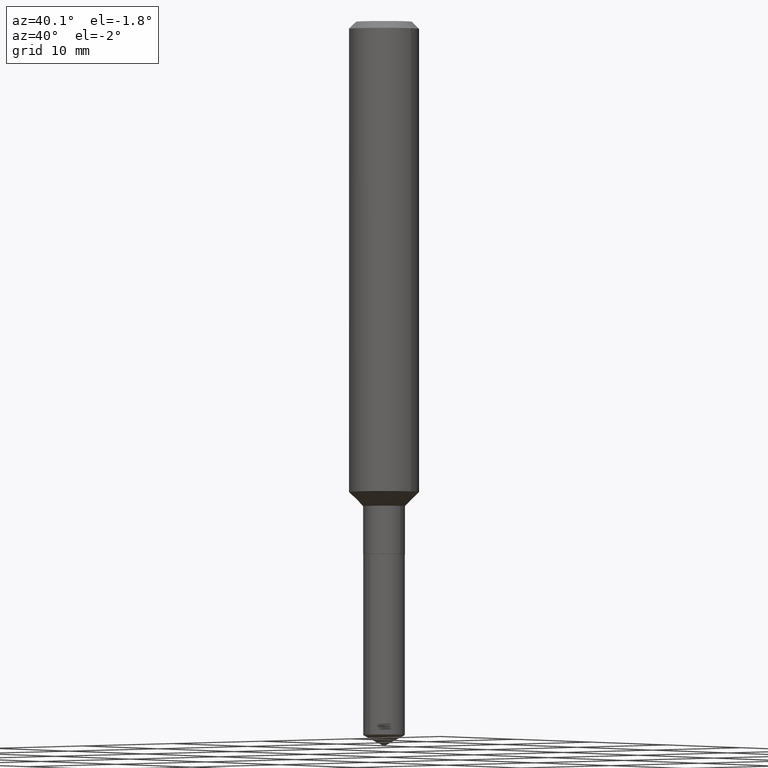
[diagram: clean part render]
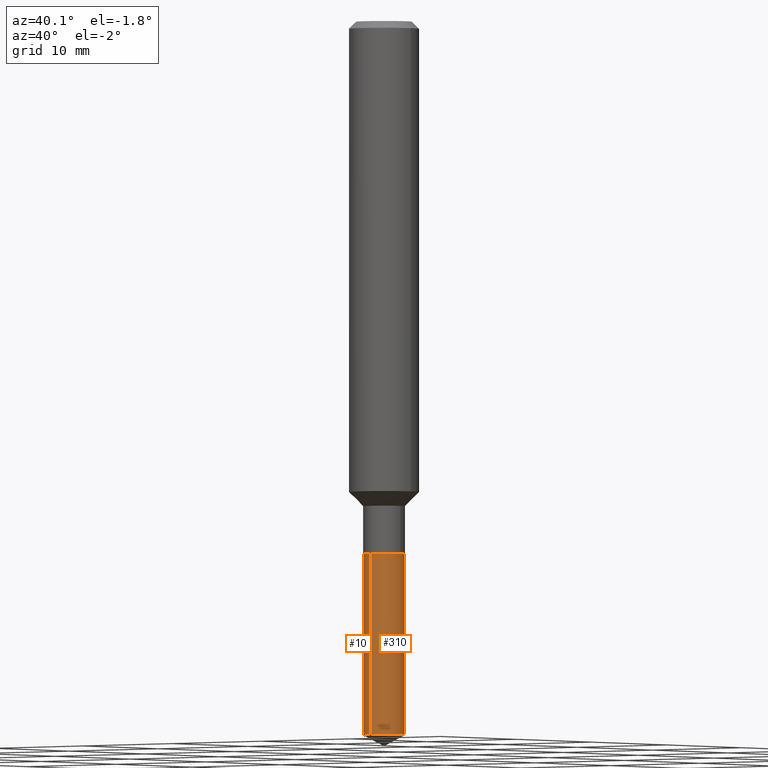
[diagram: same view with one multi-face feature highlighted, each face labeled with its STEP entity id]
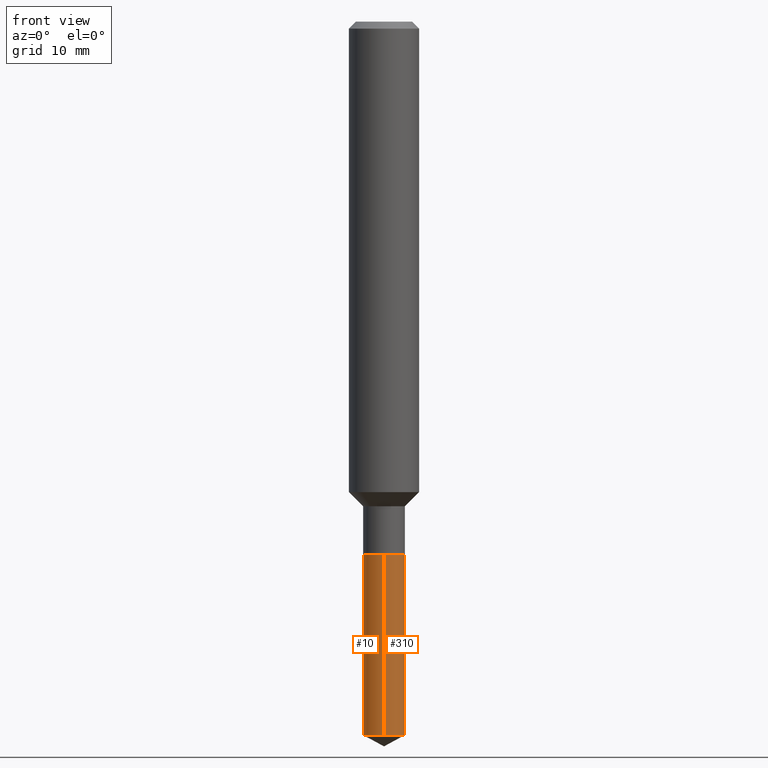
[diagram: same view with one multi-face feature highlighted, each face labeled with its STEP entity id]
A machine part, auxiliary view. The highlighted faces form ONE feature: a constant-radius fillet chain: 2 tangent blend faces with common blend radius 1.7856 mm. The faces share edges in the B-rep.
A second angle (front view) of the same feature is appended — it is thin or edge-on in the first view.
Their STEP definitions:
[1] entity #10 (Cylinder):
#4 = EDGE_CURVE ( 'NONE', #72, #319, #293, .T. ) ;
#10 = ADVANCED_FACE ( 'NONE', ( #139 ), #255, .T. ) ;
#20 = DIRECTION ( 'NONE',  ( -2.445544220405332064E-29, 3.491373341387514787E-15, 1.000000000000000000 ) ) ;
#24 = VECTOR ( 'NONE', #410, 39.37007874015748143 ) ;
#30 = DIRECTION ( 'NONE',  ( -6.982962677686265133E-15, -1.000000000000000000, 3.885985766236505386E-15 ) ) ;
#31 = ORIENTED_EDGE ( 'NONE', *, *, #323, .F. ) ;
#38 = EDGE_CURVE ( 'NONE', #388, #306, #110, .T. ) ;
#62 = AXIS2_PLACEMENT_3D ( 'NONE', #123, #20, #271 ) ;
#72 = VERTEX_POINT ( 'NONE', #457 ) ;
#98 = ORIENTED_EDGE ( 'NONE', *, *, #38, .F. ) ;
#110 = LINE ( 'NONE', #256, #24 ) ;
#114 = VECTOR ( 'NONE', #175, 39.37007874015748143 ) ;
#122 = CIRCLE ( 'NONE', #453, 0.07030000000000000138 ) ;
#123 = CARTESIAN_POINT ( 'NONE',  ( 4.387415585176754180E-29, -6.264066670018488385E-15, -1.794100000000000028 ) ) ;
#139 = FACE_OUTER_BOUND ( 'NONE', #181, .T. ) ;
#163 = ORIENTED_EDGE ( 'NONE', *, *, #405, .T. ) ;
#175 = DIRECTION ( 'NONE',  ( -2.445544220405332064E-29, 3.491373341387514787E-15, 1.000000000000000000 ) ) ;
#181 = EDGE_LOOP ( 'NONE', ( #98, #163, #423, #31 ) ) ;
#210 = CARTESIAN_POINT ( 'NONE',  ( 5.877781166329232156E-29, -8.391782298932709493E-15, -2.403520826954198331 ) ) ;
#217 = CARTESIAN_POINT ( 'NONE',  ( 4.387415585176754180E-29, -6.264066670018488385E-15, -1.794100000000000028 ) ) ;
#238 = CARTESIAN_POINT ( 'NONE',  ( 4.995115432394092106E-16, 0.07029999999999372862, -1.794100000000000472 ) ) ;
#244 = CARTESIAN_POINT ( 'NONE',  ( 4.995115432394092106E-16, 0.07029999999999161919, -2.403520826954198775 ) ) ;
#250 = DIRECTION ( 'NONE',  ( -2.445544220405332064E-29, 3.491373341387514787E-15, 1.000000000000000000 ) ) ;
#255 = CYLINDRICAL_SURFACE ( 'NONE', #489, 0.07030000000000000138 ) ;
#256 = CARTESIAN_POINT ( 'NONE',  ( 4.995115432393942222E-16, 0.07029999999999372862, -1.794100000000000472 ) ) ;
#271 = DIRECTION ( 'NONE',  ( -6.982962677686265133E-15, -1.000000000000000000, 3.885985766236505386E-15 ) ) ;
#292 = CARTESIAN_POINT ( 'NONE',  ( -4.909022762413006725E-16, -0.07030000000000626026, -1.794099999999999806 ) ) ;
#293 = LINE ( 'NONE', #292, #114 ) ;
#306 = VERTEX_POINT ( 'NONE', #238 ) ;
#319 = VERTEX_POINT ( 'NONE', #459 ) ;
#323 = EDGE_CURVE ( 'NONE', #306, #319, #386, .T. ) ;
#386 = CIRCLE ( 'NONE', #62, 0.07030000000000000138 ) ;
#388 = VERTEX_POINT ( 'NONE', #244 ) ;
#405 = EDGE_CURVE ( 'NONE', #388, #72, #122, .T. ) ;
#410 = DIRECTION ( 'NONE',  ( -2.445544220405332064E-29, 3.491373341387514787E-15, 1.000000000000000000 ) ) ;
#423 = ORIENTED_EDGE ( 'NONE', *, *, #4, .T. ) ;
#444 = DIRECTION ( 'NONE',  ( -6.982962677686265133E-15, -1.000000000000000000, 3.885985766236505386E-15 ) ) ;
#453 = AXIS2_PLACEMENT_3D ( 'NONE', #210, #250, #30 ) ;
#457 = CARTESIAN_POINT ( 'NONE',  ( -4.909022762412858814E-16, -0.07030000000000839744, -2.403520826954198331 ) ) ;
#459 = CARTESIAN_POINT ( 'NONE',  ( -4.909022762413006725E-16, -0.07030000000000626026, -1.794099999999999806 ) ) ;
#488 = DIRECTION ( 'NONE',  ( -2.445544220405332064E-29, 3.491373341387514787E-15, 1.000000000000000000 ) ) ;
#489 = AXIS2_PLACEMENT_3D ( 'NONE', #217, #488, #444 ) ;
[2] entity #310 (Cylinder):
#4 = EDGE_CURVE ( 'NONE', #72, #319, #293, .T. ) ;
#24 = VECTOR ( 'NONE', #410, 39.37007874015748143 ) ;
#38 = EDGE_CURVE ( 'NONE', #388, #306, #110, .T. ) ;
#45 = DIRECTION ( 'NONE',  ( -6.982962677686265133E-15, -1.000000000000000000, 3.885985766236505386E-15 ) ) ;
#49 = DIRECTION ( 'NONE',  ( -2.445544220405332064E-29, 3.491373341387514787E-15, 1.000000000000000000 ) ) ;
#57 = CYLINDRICAL_SURFACE ( 'NONE', #375, 0.07030000000000000138 ) ;
#66 = DIRECTION ( 'NONE',  ( -2.445544220405332064E-29, 3.491373341387514787E-15, 1.000000000000000000 ) ) ;
#72 = VERTEX_POINT ( 'NONE', #457 ) ;
#85 = ORIENTED_EDGE ( 'NONE', *, *, #38, .T. ) ;
#95 = EDGE_LOOP ( 'NONE', ( #331, #85, #249, #461 ) ) ;
#101 = DIRECTION ( 'NONE',  ( -6.982962677686265133E-15, -1.000000000000000000, 3.885985766236505386E-15 ) ) ;
#109 = AXIS2_PLACEMENT_3D ( 'NONE', #262, #415, #45 ) ;
#110 = LINE ( 'NONE', #256, #24 ) ;
#114 = VECTOR ( 'NONE', #175, 39.37007874015748143 ) ;
#150 = CIRCLE ( 'NONE', #269, 0.07030000000000000138 ) ;
#161 = FACE_OUTER_BOUND ( 'NONE', #95, .T. ) ;
#175 = DIRECTION ( 'NONE',  ( -2.445544220405332064E-29, 3.491373341387514787E-15, 1.000000000000000000 ) ) ;
#213 = EDGE_CURVE ( 'NONE', #319, #306, #429, .T. ) ;
#238 = CARTESIAN_POINT ( 'NONE',  ( 4.995115432394092106E-16, 0.07029999999999372862, -1.794100000000000472 ) ) ;
#240 = DIRECTION ( 'NONE',  ( -6.982962677686265133E-15, -1.000000000000000000, 3.885985766236505386E-15 ) ) ;
#244 = CARTESIAN_POINT ( 'NONE',  ( 4.995115432394092106E-16, 0.07029999999999161919, -2.403520826954198775 ) ) ;
#249 = ORIENTED_EDGE ( 'NONE', *, *, #213, .F. ) ;
#256 = CARTESIAN_POINT ( 'NONE',  ( 4.995115432393942222E-16, 0.07029999999999372862, -1.794100000000000472 ) ) ;
#262 = CARTESIAN_POINT ( 'NONE',  ( 4.387415585176754180E-29, -6.264066670018488385E-15, -1.794100000000000028 ) ) ;
#269 = AXIS2_PLACEMENT_3D ( 'NONE', #291, #66, #101 ) ;
#291 = CARTESIAN_POINT ( 'NONE',  ( 5.877781166329232156E-29, -8.391782298932709493E-15, -2.403520826954198331 ) ) ;
#292 = CARTESIAN_POINT ( 'NONE',  ( -4.909022762413006725E-16, -0.07030000000000626026, -1.794099999999999806 ) ) ;
#293 = LINE ( 'NONE', #292, #114 ) ;
#304 = CARTESIAN_POINT ( 'NONE',  ( 4.387415585176754180E-29, -6.264066670018488385E-15, -1.794100000000000028 ) ) ;
#306 = VERTEX_POINT ( 'NONE', #238 ) ;
#310 = ADVANCED_FACE ( 'NONE', ( #161 ), #57, .T. ) ;
#319 = VERTEX_POINT ( 'NONE', #459 ) ;
#331 = ORIENTED_EDGE ( 'NONE', *, *, #416, .T. ) ;
#375 = AXIS2_PLACEMENT_3D ( 'NONE', #304, #49, #240 ) ;
#388 = VERTEX_POINT ( 'NONE', #244 ) ;
#410 = DIRECTION ( 'NONE',  ( -2.445544220405332064E-29, 3.491373341387514787E-15, 1.000000000000000000 ) ) ;
#415 = DIRECTION ( 'NONE',  ( -2.445544220405332064E-29, 3.491373341387514787E-15, 1.000000000000000000 ) ) ;
#416 = EDGE_CURVE ( 'NONE', #72, #388, #150, .T. ) ;
#429 = CIRCLE ( 'NONE', #109, 0.07030000000000000138 ) ;
#457 = CARTESIAN_POINT ( 'NONE',  ( -4.909022762412858814E-16, -0.07030000000000839744, -2.403520826954198331 ) ) ;
#459 = CARTESIAN_POINT ( 'NONE',  ( -4.909022762413006725E-16, -0.07030000000000626026, -1.794099999999999806 ) ) ;
#461 = ORIENTED_EDGE ( 'NONE', *, *, #4, .F. ) ;